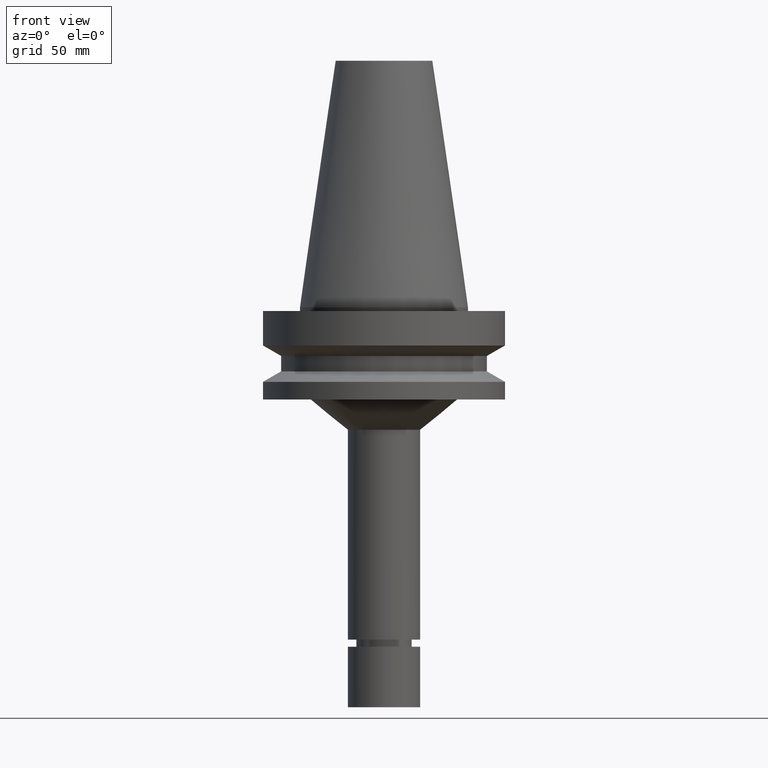
[diagram: clean part render]
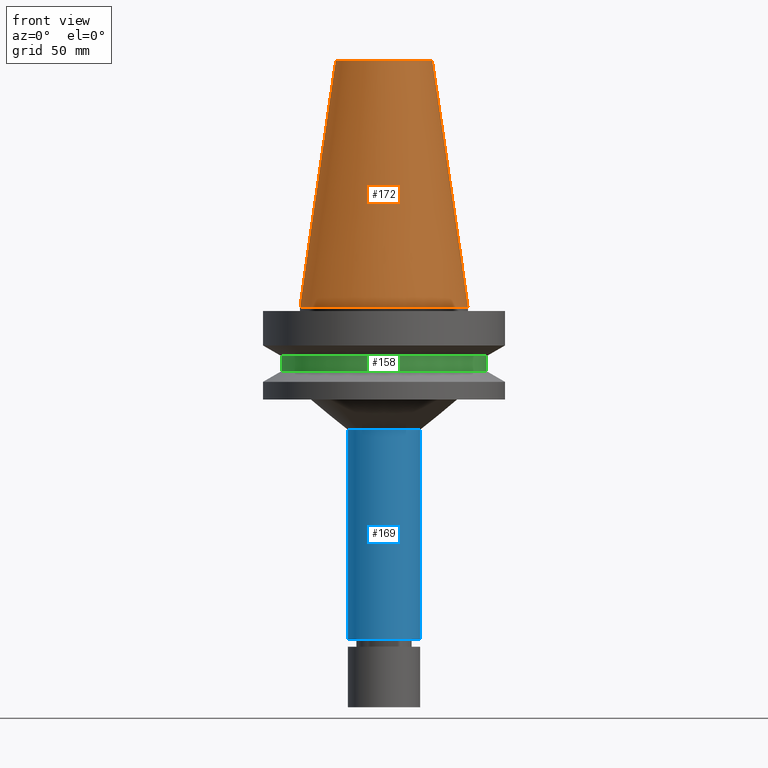
[diagram: same view with three faces highlighted in distinct colors, each labeled with its STEP entity id]
A machine part, front view with three faces highlighted in distinct colors.
Their STEP definitions:

[orange] entity #172 — the highlighted conical surface has half-angle 8.297 deg.
#139=EDGE_CURVE('Unnamed[1]',#300,#300,#301,.T.);
#172=ADVANCED_FACE('Unnamed[1]',(#349,#350),#351,.T.);
#176=EDGE_CURVE('Unnamed[1]',#356,#356,#357,.T.);
#300=VERTEX_POINT('',#501);
#301=CIRCLE('',#502,20.0791666651884);
#349=FACE_BOUND('',#560,.T.);
#350=FACE_BOUND('',#561,.T.);
#351=CONICAL_SURFACE('',#562,27.5020833325942,0.144812498253157);
#356=VERTEX_POINT('',#569);
#357=CIRCLE('',#570,34.925);
#501=CARTESIAN_POINT('',(-6.23345220766003E-015,20.0791666651884,101.8));
#502=AXIS2_PLACEMENT_3D('',#693,#694,#695);
#560=EDGE_LOOP('',(#744));
#561=EDGE_LOOP('',(#745));
#562=AXIS2_PLACEMENT_3D('',#746,#747,#748);
#569=CARTESIAN_POINT('',(-4.30483861169435E-031,34.925,4.27707894602213E-015));
#570=AXIS2_PLACEMENT_3D('',#752,#753,#754);
#693=CARTESIAN_POINT('',(-6.23345220766003E-015,1.30378574894418E-014,101.8));
#694=DIRECTION('',(-6.12323399573677E-017,-2.72265846766713E-017,1.0));
#695=DIRECTION('',(-6.49430021956955E-033,1.0,2.72265846766713E-017));
#744=ORIENTED_EDGE('',*,*,#139,.F.);
#745=ORIENTED_EDGE('',*,*,#176,.T.);
#746=CARTESIAN_POINT('',(-3.11672610383001E-015,1.44236906494828E-014,50.9));
#747=DIRECTION('',(6.12323399573677E-017,2.72265846766601E-017,-1.0));
#748=DIRECTION('',(-6.49430021957818E-033,1.0,2.72265846766601E-017));
#752=CARTESIAN_POINT('',(-1.94867425992095E-046,1.58095238095238E-014,1.93610827293772E-030));
#753=DIRECTION('',(-6.12323399573677E-017,-2.72265846766536E-017,1.0));
#754=DIRECTION('',(-6.4943002195703E-033,1.0,2.72265846766536E-017));

[blue] entity #169 — the highlighted cylindrical surface (bore or boss wall) has radius 15 mm, axis along (-0, -0, 1).
#126=EDGE_CURVE('Unnamed[1]',#281,#281,#282,.T.);
#160=EDGE_CURVE('Unnamed[1]',#332,#332,#333,.T.);
#169=ADVANCED_FACE('Unnamed[1]',(#344,#345),#346,.T.);
#281=VERTEX_POINT('',#476);
#282=CIRCLE('',#477,15.0000000000002);
#332=VERTEX_POINT('',#540);
#333=CIRCLE('',#541,15.0000000000001);
#344=FACE_BOUND('',#554,.T.);
#345=FACE_BOUND('',#555,.T.);
#346=CYLINDRICAL_SURFACE('',#556,15.0000000000002);
#476=CARTESIAN_POINT('',(8.39495380815506E-015,15.0000000000002,-137.099999999999));
#477=AXIS2_PLACEMENT_3D('',#673,#674,#675);
#540=CARTESIAN_POINT('',(3.09013157343733E-015,15.0000000000001,-50.4656783586712));
#541=AXIS2_PLACEMENT_3D('',#727,#728,#729);
#554=EDGE_LOOP('',(#738));
#555=EDGE_LOOP('',(#739));
#556=AXIS2_PLACEMENT_3D('',#740,#741,#742);
#673=CARTESIAN_POINT('',(8.39495380815506E-015,1.95422885686911E-014,-137.099999999999));
#674=DIRECTION('',(-6.12323399573677E-017,-2.72265846766882E-017,1.0));
#675=DIRECTION('',(-6.49430021957325E-033,1.0,2.72265846766882E-017));
#727=CARTESIAN_POINT('',(3.09013157343733E-015,1.71835318746203E-014,-50.4656783586712));
#728=DIRECTION('',(-6.12323399573677E-017,-2.72265846766884E-017,1.0));
#729=DIRECTION('',(-6.4943002195733E-033,1.0,2.72265846766884E-017));
#738=ORIENTED_EDGE('',*,*,#160,.F.);
#739=ORIENTED_EDGE('',*,*,#126,.T.);
#740=CARTESIAN_POINT('',(5.74254269079619E-015,1.83629102216557E-014,-93.7828391793352));
#741=DIRECTION('',(-6.12323399573677E-017,-2.72265846766883E-017,1.0));
#742=DIRECTION('',(-6.49430021957327E-033,1.0,2.72265846766883E-017));

[green] entity #158 — the highlighted cylindrical surface (bore or boss wall) has radius 42.5 mm, axis along (-0, -0, 1).
#144=EDGE_CURVE('Unnamed[1]',#308,#308,#309,.T.);
#158=ADVANCED_FACE('Unnamed[1]',(#328,#329),#330,.T.);
#174=EDGE_CURVE('Unnamed[1]',#353,#353,#354,.T.);
#308=VERTEX_POINT('',#511);
#309=CIRCLE('',#512,42.5);
#328=FACE_BOUND('',#535,.T.);
#329=FACE_BOUND('',#536,.T.);
#330=CYLINDRICAL_SURFACE('',#537,42.5);
#353=VERTEX_POINT('',#565);
#354=CIRCLE('',#566,42.5);
#511=CARTESIAN_POINT('',(1.2264915470779E-015,42.5,-20.03012702));
#512=AXIS2_PLACEMENT_3D('',#702,#703,#704);
#535=EDGE_LOOP('',(#722));
#536=EDGE_LOOP('',(#723));
#537=AXIS2_PLACEMENT_3D('',#724,#725,#726);
#565=CARTESIAN_POINT('',(1.61468902694397E-015,42.5,-26.3698729800001));
#566=AXIS2_PLACEMENT_3D('',#749,#750,#751);
#702=CARTESIAN_POINT('',(1.2264915470779E-015,1.63548757589177E-014,-20.03012702));
#703=DIRECTION('',(-6.12323399573677E-017,-2.72265846766253E-017,1.0));
#704=DIRECTION('',(-6.49430021956772E-033,1.0,2.72265846766253E-017));
#722=ORIENTED_EDGE('',*,*,#144,.F.);
#723=ORIENTED_EDGE('',*,*,#174,.T.);
#724=CARTESIAN_POINT('',(1.42059028701093E-015,1.64411805740219E-014,-23.2));
#725=DIRECTION('',(-6.12323399573677E-017,-2.72265846766253E-017,1.0));
#726=DIRECTION('',(-6.49430021956772E-033,1.0,2.72265846766253E-017));
#749=CARTESIAN_POINT('',(1.61468902694397E-015,1.6527485389126E-014,-26.3698729800001));
#750=DIRECTION('',(-6.12323399573677E-017,-2.72265846766253E-017,1.0));
#751=DIRECTION('',(-6.49430021956772E-033,1.0,2.72265846766253E-017));